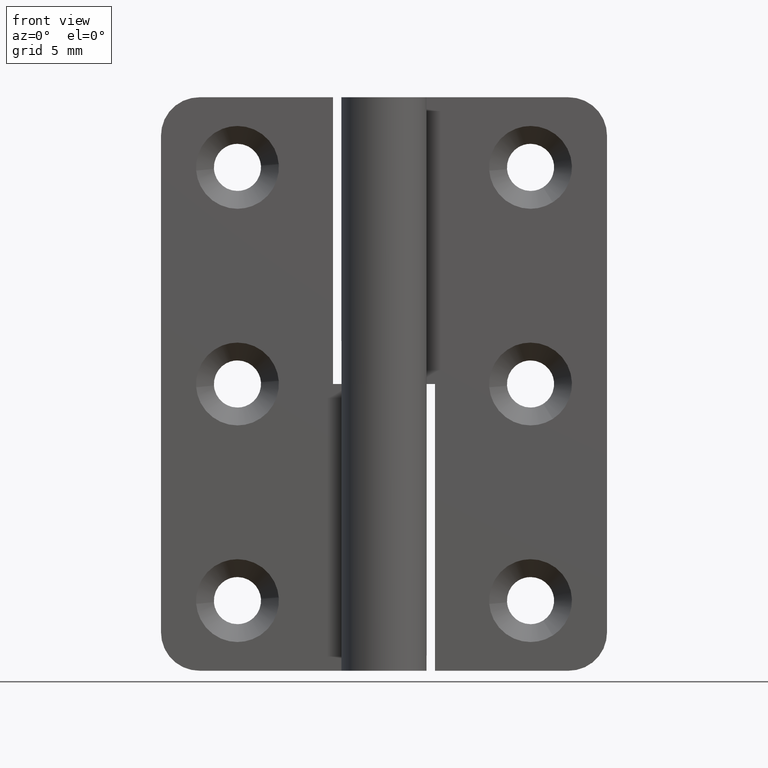
[diagram: clean part render]
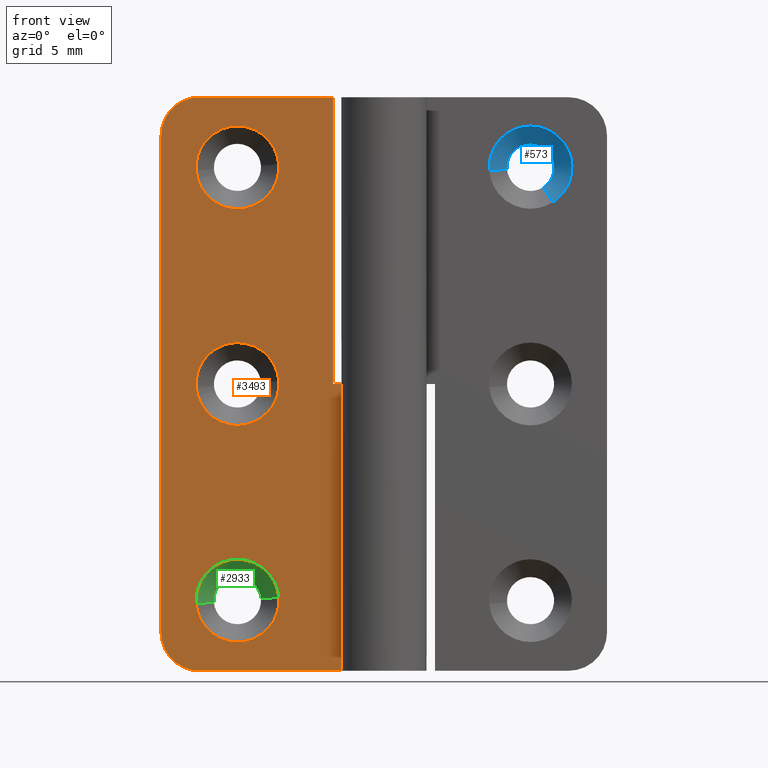
[diagram: same view with three faces highlighted in distinct colors, each labeled with its STEP entity id]
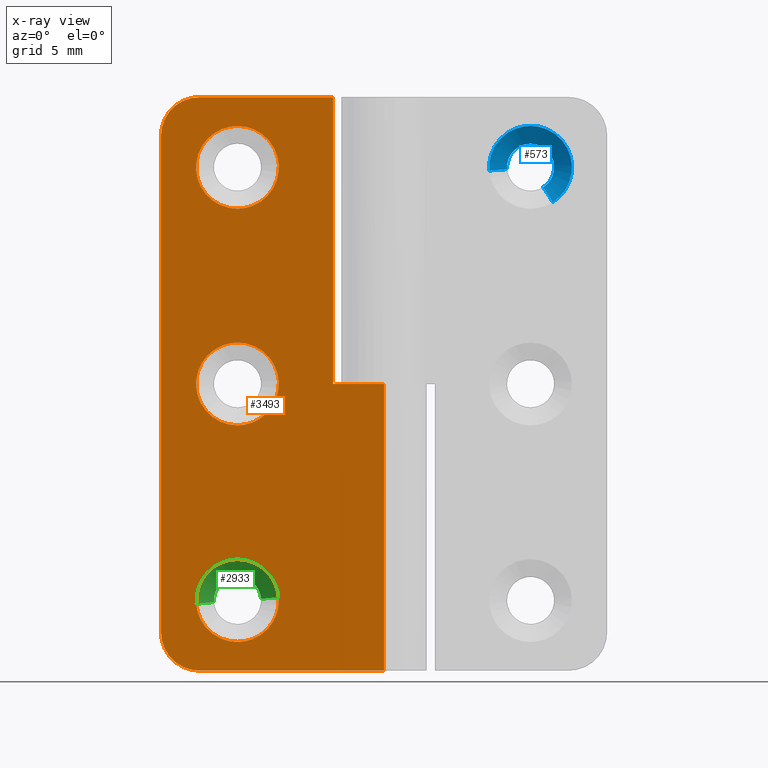
[diagram: x-ray of the same camera — body ghosted, the three highlighted faces saturated]
A machine part, front view with three faces highlighted in distinct colors.
The next image is the same camera in x-ray (body ghosted, the three faces saturated) — at least one of them is partly hidden behind the body in this view.
Their STEP definitions:

[orange] entity #3493 — the highlighted face is a freeform B-spline surface patch.
#2230=CARTESIAN_POINT('',(-8.260018665351989,1.749999999961412,39.755000061412353));
#2231=VERTEX_POINT('',#2230);
#2237=CARTESIAN_POINT('',(-11.500000000000000,1.750000000000000,42.750008000000008));
#2238=VERTEX_POINT('',#2237);
#2239=CARTESIAN_POINT('',(-11.500000000000000,1.750000000000000,42.750008000000008));
#2240=CARTESIAN_POINT('',(-8.495730902657384,1.749999999999999,42.750008000000015));
#2241=CARTESIAN_POINT('',(-8.260018665351989,1.749999999961412,39.755000061412339));
#2249=(BOUNDED_CURVE()B_SPLINE_CURVE(2,(#2239,#2240,#2241),.UNSPECIFIED.,.F.,.U.)B_SPLINE_CURVE_WITH_KNOTS((3,3),(0.0,0.236331300601676),.UNSPECIFIED.)CURVE()GEOMETRIC_REPRESENTATION_ITEM()RATIONAL_B_SPLINE_CURVE((1.0,0.723120658641622,0.969723356106932))REPRESENTATION_ITEM(''));
#2250=EDGE_CURVE('',#2238,#2231,#2249,.T.);
#2252=CARTESIAN_POINT('',(-14.739981334648011,1.749999999961411,39.245015938587670));
#2253=VERTEX_POINT('',#2252);
#2254=CARTESIAN_POINT('',(-14.739981334648013,1.749999999961411,39.245015938587677));
#2255=CARTESIAN_POINT('',(-14.750000000000004,1.750000000000000,39.372315151929897));
#2256=CARTESIAN_POINT('',(-14.750000000000000,1.750000000000000,39.500008000000001));
#2257=CARTESIAN_POINT('',(-14.749999999999993,1.750000000000000,42.750008000000008));
#2258=CARTESIAN_POINT('',(-11.500000000000000,1.750000000000000,42.750008000000008));
#2266=(BOUNDED_CURVE()B_SPLINE_CURVE(2,(#2254,#2255,#2256,#2257,#2258),.UNSPECIFIED.,.F.,.U.)B_SPLINE_CURVE_WITH_KNOTS((3,2,3),(0.736331300601676,0.750000000000000,1.0),.UNSPECIFIED.)CURVE()GEOMETRIC_REPRESENTATION_ITEM()RATIONAL_B_SPLINE_CURVE((0.969723356106932,0.983986122544926,1.0,0.707106781186547,1.0))REPRESENTATION_ITEM(''));
#2267=EDGE_CURVE('',#2253,#2238,#2266,.T.);
#2304=CARTESIAN_POINT('',(-11.500000000000000,1.750000000000000,36.250008000000001));
#2305=VERTEX_POINT('',#2304);
#2306=CARTESIAN_POINT('',(-11.500000000000000,1.750000000000000,36.250008000000001));
#2307=CARTESIAN_POINT('',(-14.504269097342593,1.749999999999999,36.250007999999994));
#2308=CARTESIAN_POINT('',(-14.739981334648009,1.749999999961411,39.245015938587670));
#2316=(BOUNDED_CURVE()B_SPLINE_CURVE(2,(#2306,#2307,#2308),.UNSPECIFIED.,.F.,.U.)B_SPLINE_CURVE_WITH_KNOTS((3,3),(0.500000000000000,0.736331300601675),.UNSPECIFIED.)CURVE()GEOMETRIC_REPRESENTATION_ITEM()RATIONAL_B_SPLINE_CURVE((1.0,0.723120658641623,0.969723356106930))REPRESENTATION_ITEM(''));
#2317=EDGE_CURVE('',#2305,#2253,#2316,.T.);
#2319=CARTESIAN_POINT('',(-8.260018665351989,1.749999999961412,39.755000061412346));
#2320=CARTESIAN_POINT('',(-8.250000000000000,1.750000000000000,39.627700848070106));
#2321=CARTESIAN_POINT('',(-8.250000000000000,1.750000000000000,39.500008000000001));
#2322=CARTESIAN_POINT('',(-8.250000000000000,1.750000000000000,36.250007999999994));
#2323=CARTESIAN_POINT('',(-11.500000000000000,1.750000000000000,36.250008000000001));
#2331=(BOUNDED_CURVE()B_SPLINE_CURVE(2,(#2319,#2320,#2321,#2322,#2323),.UNSPECIFIED.,.F.,.U.)B_SPLINE_CURVE_WITH_KNOTS((3,2,3),(0.236331300601676,0.250000000000000,0.500000000000000),.UNSPECIFIED.)CURVE()GEOMETRIC_REPRESENTATION_ITEM()RATIONAL_B_SPLINE_CURVE((0.969723356106932,0.983986122544926,1.0,0.707106781186547,1.0))REPRESENTATION_ITEM(''));
#2332=EDGE_CURVE('',#2231,#2305,#2331,.T.);
#2558=CARTESIAN_POINT('',(-8.260018665351989,1.749999999961412,22.754992061412342));
#2559=VERTEX_POINT('',#2558);
#2565=CARTESIAN_POINT('',(-11.500000000000000,1.750000000000000,25.750000000000000));
#2566=VERTEX_POINT('',#2565);
#2567=CARTESIAN_POINT('',(-11.500000000000000,1.750000000000000,25.750000000000000));
#2568=CARTESIAN_POINT('',(-8.495730902657389,1.749999999999999,25.750000000000004));
#2569=CARTESIAN_POINT('',(-8.260018665351989,1.749999999961412,22.754992061412342));
#2577=(BOUNDED_CURVE()B_SPLINE_CURVE(2,(#2567,#2568,#2569),.UNSPECIFIED.,.F.,.U.)B_SPLINE_CURVE_WITH_KNOTS((3,3),(0.0,0.236331300601676),.UNSPECIFIED.)CURVE()GEOMETRIC_REPRESENTATION_ITEM()RATIONAL_B_SPLINE_CURVE((1.0,0.723120658641622,0.969723356106931))REPRESENTATION_ITEM(''));
#2578=EDGE_CURVE('',#2566,#2559,#2577,.T.);
#2580=CARTESIAN_POINT('',(-14.739981334648011,1.749999999961411,22.245007938587658));
#2581=VERTEX_POINT('',#2580);
#2582=CARTESIAN_POINT('',(-14.739981334648009,1.749999999961411,22.245007938587666));
#2583=CARTESIAN_POINT('',(-14.749999999999998,1.750000000000000,22.372307151929903));
#2584=CARTESIAN_POINT('',(-14.750000000000000,1.750000000000000,22.500000000000000));
#2585=CARTESIAN_POINT('',(-14.749999999999993,1.750000000000000,25.750000000000004));
#2586=CARTESIAN_POINT('',(-11.500000000000000,1.750000000000000,25.750000000000000));
#2594=(BOUNDED_CURVE()B_SPLINE_CURVE(2,(#2582,#2583,#2584,#2585,#2586),.UNSPECIFIED.,.F.,.U.)B_SPLINE_CURVE_WITH_KNOTS((3,2,3),(0.736331300601676,0.750000000000000,1.0),.UNSPECIFIED.)CURVE()GEOMETRIC_REPRESENTATION_ITEM()RATIONAL_B_SPLINE_CURVE((0.969723356106931,0.983986122544926,1.0,0.707106781186547,1.0))REPRESENTATION_ITEM(''));
#2595=EDGE_CURVE('',#2581,#2566,#2594,.T.);
#2632=CARTESIAN_POINT('',(-11.500000000000000,1.750000000000000,19.250000000000000));
#2633=VERTEX_POINT('',#2632);
#2634=CARTESIAN_POINT('',(-11.500000000000000,1.750000000000000,19.250000000000000));
#2635=CARTESIAN_POINT('',(-14.504269097342593,1.749999999999999,19.250000000000004));
#2636=CARTESIAN_POINT('',(-14.739981334648009,1.749999999961411,22.245007938587658));
#2644=(BOUNDED_CURVE()B_SPLINE_CURVE(2,(#2634,#2635,#2636),.UNSPECIFIED.,.F.,.U.)B_SPLINE_CURVE_WITH_KNOTS((3,3),(0.500000000000000,0.736331300601675),.UNSPECIFIED.)CURVE()GEOMETRIC_REPRESENTATION_ITEM()RATIONAL_B_SPLINE_CURVE((1.0,0.723120658641623,0.969723356106930))REPRESENTATION_ITEM(''));
#2645=EDGE_CURVE('',#2633,#2581,#2644,.T.);
#2647=CARTESIAN_POINT('',(-8.260018665351989,1.749999999961412,22.754992061412342));
#2648=CARTESIAN_POINT('',(-8.250000000000000,1.750000000000000,22.627692848070097));
#2649=CARTESIAN_POINT('',(-8.250000000000000,1.750000000000000,22.500000000000000));
#2650=CARTESIAN_POINT('',(-8.250000000000000,1.750000000000000,19.250000000000000));
#2651=CARTESIAN_POINT('',(-11.500000000000000,1.750000000000000,19.250000000000000));
#2659=(BOUNDED_CURVE()B_SPLINE_CURVE(2,(#2647,#2648,#2649,#2650,#2651),.UNSPECIFIED.,.F.,.U.)B_SPLINE_CURVE_WITH_KNOTS((3,2,3),(0.236331300601676,0.250000000000000,0.500000000000000),.UNSPECIFIED.)CURVE()GEOMETRIC_REPRESENTATION_ITEM()RATIONAL_B_SPLINE_CURVE((0.969723356106931,0.983986122544926,1.0,0.707106781186547,1.0))REPRESENTATION_ITEM(''));
#2660=EDGE_CURVE('',#2559,#2633,#2659,.T.);
#2886=CARTESIAN_POINT('',(-8.260018665351989,1.749999999961412,5.754992061412338));
#2887=VERTEX_POINT('',#2886);
#2893=CARTESIAN_POINT('',(-11.500000000000000,1.750000000000000,8.749999999999998));
#2894=VERTEX_POINT('',#2893);
#2895=CARTESIAN_POINT('',(-11.500000000000000,1.750000000000000,8.749999999999998));
#2896=CARTESIAN_POINT('',(-8.495730902657389,1.749999999999999,8.749999999999996));
#2897=CARTESIAN_POINT('',(-8.260018665351989,1.749999999961412,5.754992061412338));
#2905=(BOUNDED_CURVE()B_SPLINE_CURVE(2,(#2895,#2896,#2897),.UNSPECIFIED.,.F.,.U.)B_SPLINE_CURVE_WITH_KNOTS((3,3),(0.0,0.236331300601676),.UNSPECIFIED.)CURVE()GEOMETRIC_REPRESENTATION_ITEM()RATIONAL_B_SPLINE_CURVE((1.0,0.723120658641622,0.969723356106931))REPRESENTATION_ITEM(''));
#2906=EDGE_CURVE('',#2894,#2887,#2905,.T.);
#2908=CARTESIAN_POINT('',(-14.739981334648011,1.749999999961411,5.245007938587662));
#2909=VERTEX_POINT('',#2908);
#2910=CARTESIAN_POINT('',(-14.739981334648009,1.749999999961411,5.245007938587662));
#2911=CARTESIAN_POINT('',(-14.749999999999998,1.750000000000000,5.372307151929897));
#2912=CARTESIAN_POINT('',(-14.750000000000000,1.750000000000000,5.500000000000000));
#2913=CARTESIAN_POINT('',(-14.749999999999993,1.750000000000000,8.749999999999998));
#2914=CARTESIAN_POINT('',(-11.500000000000000,1.750000000000000,8.749999999999998));
#2922=(BOUNDED_CURVE()B_SPLINE_CURVE(2,(#2910,#2911,#2912,#2913,#2914),.UNSPECIFIED.,.F.,.U.)B_SPLINE_CURVE_WITH_KNOTS((3,2,3),(0.736331300601676,0.750000000000000,1.0),.UNSPECIFIED.)CURVE()GEOMETRIC_REPRESENTATION_ITEM()RATIONAL_B_SPLINE_CURVE((0.969723356106931,0.983986122544926,1.0,0.707106781186547,1.0))REPRESENTATION_ITEM(''));
#2923=EDGE_CURVE('',#2909,#2894,#2922,.T.);
#2960=CARTESIAN_POINT('',(-11.500000000000000,1.750000000000000,2.250000000000000));
#2961=VERTEX_POINT('',#2960);
#2962=CARTESIAN_POINT('',(-11.500000000000000,1.750000000000000,2.250000000000000));
#2963=CARTESIAN_POINT('',(-14.504269097342593,1.749999999999999,2.250000000000000));
#2964=CARTESIAN_POINT('',(-14.739981334648009,1.749999999961411,5.245007938587662));
#2972=(BOUNDED_CURVE()B_SPLINE_CURVE(2,(#2962,#2963,#2964),.UNSPECIFIED.,.F.,.U.)B_SPLINE_CURVE_WITH_KNOTS((3,3),(0.500000000000000,0.736331300601675),.UNSPECIFIED.)CURVE()GEOMETRIC_REPRESENTATION_ITEM()RATIONAL_B_SPLINE_CURVE((1.0,0.723120658641623,0.969723356106930))REPRESENTATION_ITEM(''));
#2973=EDGE_CURVE('',#2961,#2909,#2972,.T.);
#2975=CARTESIAN_POINT('',(-8.260018665351989,1.749999999961412,5.754992061412338));
#2976=CARTESIAN_POINT('',(-8.250000000000000,1.750000000000000,5.627692848070104));
#2977=CARTESIAN_POINT('',(-8.250000000000000,1.750000000000000,5.500000000000000));
#2978=CARTESIAN_POINT('',(-8.250000000000000,1.750000000000000,2.250000000000000));
#2979=CARTESIAN_POINT('',(-11.500000000000000,1.750000000000000,2.250000000000000));
#2987=(BOUNDED_CURVE()B_SPLINE_CURVE(2,(#2975,#2976,#2977,#2978,#2979),.UNSPECIFIED.,.F.,.U.)B_SPLINE_CURVE_WITH_KNOTS((3,2,3),(0.236331300601676,0.250000000000000,0.500000000000000),.UNSPECIFIED.)CURVE()GEOMETRIC_REPRESENTATION_ITEM()RATIONAL_B_SPLINE_CURVE((0.969723356106931,0.983986122544926,1.0,0.707106781186547,1.0))REPRESENTATION_ITEM(''));
#2988=EDGE_CURVE('',#2887,#2961,#2987,.T.);
#3008=CARTESIAN_POINT('',(-17.500000000000000,1.750000000000000,3.0));
#3009=VERTEX_POINT('',#3008);
#3010=CARTESIAN_POINT('',(-14.500000000000000,1.750000000000000,0.0));
#3011=VERTEX_POINT('',#3010);
#3012=CARTESIAN_POINT('',(-17.500000000000000,1.750000000000000,3.0));
#3013=CARTESIAN_POINT('',(-17.499999999999996,1.750000000000000,0.0));
#3014=CARTESIAN_POINT('',(-14.500000000000000,1.750000000000000,0.0));
#3022=(BOUNDED_CURVE()B_SPLINE_CURVE(2,(#3012,#3013,#3014),.UNSPECIFIED.,.F.,.U.)CURVE()GEOMETRIC_REPRESENTATION_ITEM()QUASI_UNIFORM_CURVE()RATIONAL_B_SPLINE_CURVE((1.0,0.707106781186548,1.0))REPRESENTATION_ITEM(''));
#3023=EDGE_CURVE('',#3009,#3011,#3022,.T.);
#3069=CARTESIAN_POINT('',(-14.500000000000000,1.750000000000000,45.000008000000001));
#3070=VERTEX_POINT('',#3069);
#3071=CARTESIAN_POINT('',(-17.500000000000000,1.750000000000000,42.000008000000037));
#3072=VERTEX_POINT('',#3071);
#3073=CARTESIAN_POINT('',(-14.500000000000000,1.750000000000000,45.000008000000051));
#3074=CARTESIAN_POINT('',(-17.499999999999996,1.750000000000000,45.000008000000058));
#3075=CARTESIAN_POINT('',(-17.500000000000000,1.750000000000000,42.000008000000037));
#3083=(BOUNDED_CURVE()B_SPLINE_CURVE(2,(#3073,#3074,#3075),.UNSPECIFIED.,.F.,.U.)CURVE()GEOMETRIC_REPRESENTATION_ITEM()QUASI_UNIFORM_CURVE()RATIONAL_B_SPLINE_CURVE((1.0,0.707106781186548,1.0))REPRESENTATION_ITEM(''));
#3084=EDGE_CURVE('',#3070,#3072,#3083,.T.);
#3121=CARTESIAN_POINT('',(-4.0,1.750000000000030,45.000008000000001));
#3122=VERTEX_POINT('',#3121);
#3123=CARTESIAN_POINT('',(-4.0,1.750000000000030,22.500000000000000));
#3124=VERTEX_POINT('',#3123);
#3125=CARTESIAN_POINT('',(-4.0,1.750000000000030,45.000008000000001));
#3126=CARTESIAN_POINT('',(-4.0,1.750000000000030,22.500000000000000));
#3127=QUASI_UNIFORM_CURVE('',1,(#3125,#3126),.UNSPECIFIED.,.F.,.U.);
#3128=EDGE_CURVE('',#3122,#3124,#3127,.T.);
#3193=CARTESIAN_POINT('',(-1.447159E-015,1.750000000000000,22.500000000000000));
#3194=VERTEX_POINT('',#3193);
#3195=CARTESIAN_POINT('',(-4.0,1.750000000000030,22.500000000000000));
#3196=CARTESIAN_POINT('',(-1.447159E-015,1.750000000000000,22.500000000000000));
#3197=QUASI_UNIFORM_CURVE('',1,(#3195,#3196),.UNSPECIFIED.,.F.,.U.);
#3198=EDGE_CURVE('',#3124,#3194,#3197,.T.);
#3234=CARTESIAN_POINT('',(-1.447159E-015,1.750000000000000,0.0));
#3235=VERTEX_POINT('',#3234);
#3236=CARTESIAN_POINT('',(-1.447159E-015,1.750000000000000,0.0));
#3237=CARTESIAN_POINT('',(-14.500000000000000,1.750000000000000,0.0));
#3238=QUASI_UNIFORM_CURVE('',1,(#3236,#3237),.UNSPECIFIED.,.F.,.U.);
#3239=EDGE_CURVE('',#3235,#3011,#3238,.T.);
#3304=CARTESIAN_POINT('',(-17.500000000000000,1.750000000000000,3.0));
#3305=CARTESIAN_POINT('',(-17.500000000000000,1.750000000000000,42.000008000000037));
#3306=QUASI_UNIFORM_CURVE('',1,(#3304,#3305),.UNSPECIFIED.,.F.,.U.);
#3307=EDGE_CURVE('',#3009,#3072,#3306,.T.);
#3330=CARTESIAN_POINT('',(-4.0,1.750000000000030,45.000008000000001));
#3331=CARTESIAN_POINT('',(-14.500000000000000,1.750000000000000,45.000008000000001));
#3332=QUASI_UNIFORM_CURVE('',1,(#3330,#3331),.UNSPECIFIED.,.F.,.U.);
#3333=EDGE_CURVE('',#3122,#3070,#3332,.T.);
#3367=CARTESIAN_POINT('',(-1.447159E-015,1.750000000000000,0.0));
#3368=CARTESIAN_POINT('',(-1.447159E-015,1.750000000000000,22.500000000000000));
#3369=QUASI_UNIFORM_CURVE('',1,(#3367,#3368),.UNSPECIFIED.,.F.,.U.);
#3370=EDGE_CURVE('',#3235,#3194,#3369,.T.);
#3460=CARTESIAN_POINT('',(-18.374124966081599,1.750000000000000,-2.247750312381252));
#3461=CARTESIAN_POINT('',(-18.374124966081599,1.750000000000000,47.247759519375542));
#3462=CARTESIAN_POINT('',(0.874125435468179,1.750000000000000,-2.247750312381252));
#3463=CARTESIAN_POINT('',(0.874125435468179,1.750000000000000,47.247759519375542));
#3464=B_SPLINE_SURFACE_WITH_KNOTS('',1,1,((#3460,#3462),(#3461,#3463)),.UNSPECIFIED.,.F.,.F.,.U.,(2,2),(2,2),(0.0,49.495509831756792),(0.0,19.248250401549779),.UNSPECIFIED.);
#3465=ORIENTED_EDGE('',*,*,#3333,.T.);
#3466=ORIENTED_EDGE('',*,*,#3084,.T.);
#3467=ORIENTED_EDGE('',*,*,#3307,.F.);
#3468=ORIENTED_EDGE('',*,*,#3023,.T.);
#3469=ORIENTED_EDGE('',*,*,#3239,.F.);
#3470=ORIENTED_EDGE('',*,*,#3370,.T.);
#3471=ORIENTED_EDGE('',*,*,#3198,.F.);
#3472=ORIENTED_EDGE('',*,*,#3128,.F.);
#3473=EDGE_LOOP('',(#3465,#3466,#3467,#3468,#3469,#3470,#3471,#3472));
#3474=FACE_OUTER_BOUND('',#3473,.T.);
#3475=ORIENTED_EDGE('',*,*,#2973,.T.);
#3476=ORIENTED_EDGE('',*,*,#2923,.T.);
#3477=ORIENTED_EDGE('',*,*,#2906,.T.);
#3478=ORIENTED_EDGE('',*,*,#2988,.T.);
#3479=EDGE_LOOP('',(#3475,#3476,#3477,#3478));
#3480=FACE_BOUND('',#3479,.T.);
#3481=ORIENTED_EDGE('',*,*,#2645,.T.);
#3482=ORIENTED_EDGE('',*,*,#2595,.T.);
#3483=ORIENTED_EDGE('',*,*,#2578,.T.);
#3484=ORIENTED_EDGE('',*,*,#2660,.T.);
#3485=EDGE_LOOP('',(#3481,#3482,#3483,#3484));
#3486=FACE_BOUND('',#3485,.T.);
#3487=ORIENTED_EDGE('',*,*,#2317,.T.);
#3488=ORIENTED_EDGE('',*,*,#2267,.T.);
#3489=ORIENTED_EDGE('',*,*,#2250,.T.);
#3490=ORIENTED_EDGE('',*,*,#2332,.T.);
#3491=EDGE_LOOP('',(#3487,#3488,#3489,#3490));
#3492=FACE_BOUND('',#3491,.T.);
#3493=ADVANCED_FACE('',(#3474,#3480,#3486,#3492),#3464,.F.);

[blue] entity #573 — the highlighted face is a freeform B-spline surface patch.
#437=CARTESIAN_POINT('',(12.476199190104854,3.185000000000000,37.969890311311111));
#438=CARTESIAN_POINT('',(13.394906137612059,3.185000000000000,38.556015800043106));
#439=CARTESIAN_POINT('',(13.309404960725630,3.185000000000001,39.642411258746037));
#440=CARTESIAN_POINT('',(13.167001701979586,3.185000000000001,41.451816219471674));
#441=CARTESIAN_POINT('',(11.357596741253960,3.185000000000001,41.309412960725631));
#442=CARTESIAN_POINT('',(9.548191780528335,3.185000000000001,41.167009701979580));
#443=CARTESIAN_POINT('',(9.690595039274374,3.185000000000001,39.357604741253958));
#444=CARTESIAN_POINT('',(13.267310475915039,1.714125000000000,36.729883779437699));
#445=CARTESIAN_POINT('',(14.930537027507453,1.714125000000000,37.791005041303940));
#446=CARTESIAN_POINT('',(14.775745743980339,1.714125000000000,39.757814781174737));
#447=CARTESIAN_POINT('',(14.517938962805610,1.714125000000000,43.033560525155075));
#448=CARTESIAN_POINT('',(11.242193218825269,1.714125000000000,42.775753743980339));
#449=CARTESIAN_POINT('',(7.966447474844927,1.714125000000000,42.517946962805610));
#450=CARTESIAN_POINT('',(8.224254256019661,1.714125000000000,39.242201218825272));
#458=(BOUNDED_SURFACE()B_SPLINE_SURFACE(2,1,((#437,#444),(#438,#445),(#439,#446),(#440,#447),(#441,#448),(#442,#449),(#443,#450)),.UNSPECIFIED.,.F.,.F.,.U.)B_SPLINE_SURFACE_WITH_KNOTS((3,2,2,3),(2,2),(0.0,3.702066850794523,9.146282807845294,14.590498764896060),(0.0,2.080131373555525),.UNSPECIFIED.)GEOMETRIC_REPRESENTATION_ITEM()RATIONAL_B_SPLINE_SURFACE(((0.872532871172386,0.872532871172386),(0.800832611206852,0.800832611206852),(1.0,1.0),(0.707106781186548,0.707106781186548),(1.0,1.0),(0.707106781186548,0.707106781186548),(1.0,1.0)))REPRESENTATION_ITEM('')SURFACE());
#459=CARTESIAN_POINT('',(13.337067623767419,3.150000000000000,39.718371334160139));
#460=VERTEX_POINT('',#459);
#461=CARTESIAN_POINT('',(12.495023967928670,3.149999999996684,37.940383909630867));
#462=VERTEX_POINT('',#461);
#463=CARTESIAN_POINT('',(13.337067623767416,3.150000000000000,39.718371334160139));
#464=CARTESIAN_POINT('',(13.350000000000001,3.150000000000000,39.609572621401654));
#465=CARTESIAN_POINT('',(13.350000000000000,3.150000000000000,39.500008000000001));
#466=CARTESIAN_POINT('',(13.349999999999998,3.149999999999999,38.485849736452110));
#467=CARTESIAN_POINT('',(12.495023967928669,3.149999999996684,37.940383909630860));
#475=(BOUNDED_CURVE()B_SPLINE_CURVE(2,(#463,#464,#465,#466,#467),.UNSPECIFIED.,.F.,.U.)B_SPLINE_CURVE_WITH_KNOTS((3,2,3),(0.229562473507339,0.250000000000000,0.407950112617503),.UNSPECIFIED.)CURVE()GEOMETRIC_REPRESENTATION_ITEM()RATIONAL_B_SPLINE_CURVE((0.956026754171606,0.976055948323917,1.0,0.814949932414049,0.863729296948718))REPRESENTATION_ITEM(''));
#476=EDGE_CURVE('',#460,#462,#475,.T.);
#477=ORIENTED_EDGE('',*,*,#476,.T.);
#478=CARTESIAN_POINT('',(13.248015078775589,1.749999999995386,36.760127841233349));
#479=VERTEX_POINT('',#478);
#480=CARTESIAN_POINT('',(12.495023967928670,3.149999999996684,37.940383909630867));
#481=CARTESIAN_POINT('',(13.248015078775589,1.749999999995386,36.760127841233349));
#482=QUASI_UNIFORM_CURVE('',1,(#480,#481),.UNSPECIFIED.,.F.,.U.);
#483=EDGE_CURVE('',#462,#479,#482,.T.);
#484=ORIENTED_EDGE('',*,*,#483,.T.);
#485=CARTESIAN_POINT('',(11.500000000000000,1.750000000000000,42.750008000000008));
#486=VERTEX_POINT('',#485);
#487=CARTESIAN_POINT('',(11.500000000000000,1.750000000000000,42.750008000000008));
#488=CARTESIAN_POINT('',(14.749999999999993,1.750000000000000,42.750008000000008));
#489=CARTESIAN_POINT('',(14.750000000000000,1.750000000000000,39.500008000000001));
#490=CARTESIAN_POINT('',(14.750000000000004,1.750000000000000,37.718378618064726));
#491=CARTESIAN_POINT('',(13.248015078775591,1.749999999995386,36.760127841233349));
#499=(BOUNDED_CURVE()B_SPLINE_CURVE(2,(#487,#488,#489,#490,#491),.UNSPECIFIED.,.F.,.U.)B_SPLINE_CURVE_WITH_KNOTS((3,2,3),(0.0,0.250000000000000,0.407950112619439),.UNSPECIFIED.)CURVE()GEOMETRIC_REPRESENTATION_ITEM()RATIONAL_B_SPLINE_CURVE((1.0,0.707106781186547,1.0,0.814949932411780,0.863729296949914))REPRESENTATION_ITEM(''));
#500=EDGE_CURVE('',#486,#479,#499,.T.);
#501=ORIENTED_EDGE('',*,*,#500,.F.);
#502=CARTESIAN_POINT('',(8.260018665351989,1.749999999961411,39.245015938587663));
#503=VERTEX_POINT('',#502);
#504=CARTESIAN_POINT('',(8.260018665351989,1.749999999961411,39.245015938587677));
#505=CARTESIAN_POINT('',(8.249999999999998,1.750000000000000,39.372315151929897));
#506=CARTESIAN_POINT('',(8.250000000000000,1.750000000000000,39.500008000000001));
#507=CARTESIAN_POINT('',(8.250000000000000,1.750000000000000,42.750008000000008));
#508=CARTESIAN_POINT('',(11.500000000000000,1.750000000000000,42.750008000000008));
#516=(BOUNDED_CURVE()B_SPLINE_CURVE(2,(#504,#505,#506,#507,#508),.UNSPECIFIED.,.F.,.U.)B_SPLINE_CURVE_WITH_KNOTS((3,2,3),(0.736331300601676,0.750000000000000,1.0),.UNSPECIFIED.)CURVE()GEOMETRIC_REPRESENTATION_ITEM()RATIONAL_B_SPLINE_CURVE((0.969723356106932,0.983986122544926,1.0,0.707106781186547,1.0))REPRESENTATION_ITEM(''));
#517=EDGE_CURVE('',#503,#486,#516,.T.);
#518=ORIENTED_EDGE('',*,*,#517,.F.);
#519=CARTESIAN_POINT('',(9.655702932590888,3.149999999992996,39.354858672850142));
#520=VERTEX_POINT('',#519);
#521=CARTESIAN_POINT('',(9.655702932590888,3.149999999992996,39.354858672850142));
#522=CARTESIAN_POINT('',(8.260018665351989,1.749999999961411,39.245015938587663));
#523=QUASI_UNIFORM_CURVE('',1,(#521,#522),.UNSPECIFIED.,.F.,.U.);
#524=EDGE_CURVE('',#520,#503,#523,.T.);
#525=ORIENTED_EDGE('',*,*,#524,.F.);
#526=CARTESIAN_POINT('',(9.653450622924266,3.150000000000000,39.387068201783343));
#527=VERTEX_POINT('',#526);
#528=CARTESIAN_POINT('',(9.655702932590888,3.149999999992996,39.354858672850149));
#529=CARTESIAN_POINT('',(9.654436233615522,3.150000000000000,39.370953609447668));
#530=CARTESIAN_POINT('',(9.653450622924266,3.150000000000000,39.387068201783336));
#538=(BOUNDED_CURVE()B_SPLINE_CURVE(2,(#528,#529,#530),.UNSPECIFIED.,.F.,.U.)B_SPLINE_CURVE_WITH_KNOTS((3,3),(0.736331300622952,0.739332962227546),.UNSPECIFIED.)CURVE()GEOMETRIC_REPRESENTATION_ITEM()RATIONAL_B_SPLINE_CURVE((0.969723356151333,0.972855475539784,0.976072041642292))REPRESENTATION_ITEM(''));
#539=EDGE_CURVE('',#520,#527,#538,.T.);
#540=ORIENTED_EDGE('',*,*,#539,.T.);
#541=CARTESIAN_POINT('',(11.500000000000000,3.150000000000000,41.350008000000003));
#542=VERTEX_POINT('',#541);
#543=CARTESIAN_POINT('',(9.653450622924266,3.150000000000000,39.387068201783336));
#544=CARTESIAN_POINT('',(9.649999999999999,3.150000000000000,39.443485387820218));
#545=CARTESIAN_POINT('',(9.649999999999999,3.150000000000000,39.500008000000001));
#546=CARTESIAN_POINT('',(9.650000000000000,3.149999999999999,41.350007999999995));
#547=CARTESIAN_POINT('',(11.500000000000000,3.150000000000000,41.350008000000003));
#555=(BOUNDED_CURVE()B_SPLINE_CURVE(2,(#543,#544,#545,#546,#547),.UNSPECIFIED.,.F.,.U.)B_SPLINE_CURVE_WITH_KNOTS((3,2,3),(0.739332962227545,0.750000000000000,1.0),.UNSPECIFIED.)CURVE()GEOMETRIC_REPRESENTATION_ITEM()RATIONAL_B_SPLINE_CURVE((0.976072041642289,0.987502787886484,1.0,0.707106781186548,1.0))REPRESENTATION_ITEM(''));
#556=EDGE_CURVE('',#527,#542,#555,.T.);
#557=ORIENTED_EDGE('',*,*,#556,.T.);
#558=CARTESIAN_POINT('',(11.500000000000000,3.150000000000000,41.350008000000003));
#559=CARTESIAN_POINT('',(13.143122872928711,3.149999999999999,41.350007999999995));
#560=CARTESIAN_POINT('',(13.337067623767421,3.150000000000000,39.718371334160139));
#568=(BOUNDED_CURVE()B_SPLINE_CURVE(2,(#558,#559,#560),.UNSPECIFIED.,.F.,.U.)B_SPLINE_CURVE_WITH_KNOTS((3,3),(0.0,0.229562473507339),.UNSPECIFIED.)CURVE()GEOMETRIC_REPRESENTATION_ITEM()RATIONAL_B_SPLINE_CURVE((1.0,0.731050832862631,0.956026754171607))REPRESENTATION_ITEM(''));
#569=EDGE_CURVE('',#542,#460,#568,.T.);
#570=ORIENTED_EDGE('',*,*,#569,.T.);
#571=EDGE_LOOP('',(#477,#484,#501,#518,#525,#540,#557,#570));
#572=FACE_OUTER_BOUND('',#571,.T.);
#573=ADVANCED_FACE('',(#572),#458,.F.);

[green] entity #2933 — the highlighted face is a freeform B-spline surface patch.
#2738=CARTESIAN_POINT('',(-13.346549391234330,3.149999999998532,5.387060433274877));
#2739=VERTEX_POINT('',#2738);
#2783=CARTESIAN_POINT('',(-9.655702932588191,3.149999999985940,5.645149327205572));
#2784=VERTEX_POINT('',#2783);
#2800=CARTESIAN_POINT('',(-11.500000000000000,3.150000000000000,7.350000000000000));
#2801=VERTEX_POINT('',#2800);
#2802=CARTESIAN_POINT('',(-11.500000000000000,3.150000000000000,7.350000000000000));
#2803=CARTESIAN_POINT('',(-9.789877590633139,3.150000000000000,7.350000000000000));
#2804=CARTESIAN_POINT('',(-9.655702932588191,3.149999999985940,5.645149327205572));
#2812=(BOUNDED_CURVE()B_SPLINE_CURVE(2,(#2802,#2803,#2804),.UNSPECIFIED.,.F.,.U.)B_SPLINE_CURVE_WITH_KNOTS((3,3),(0.0,0.236331300612698),.UNSPECIFIED.)CURVE()GEOMETRIC_REPRESENTATION_ITEM()RATIONAL_B_SPLINE_CURVE((1.0,0.723120658628709,0.969723356129934))REPRESENTATION_ITEM(''));
#2813=EDGE_CURVE('',#2801,#2784,#2812,.T.);
#2815=CARTESIAN_POINT('',(-13.346549391234330,3.149999999998533,5.387060433274877));
#2816=CARTESIAN_POINT('',(-13.350000000000007,3.150000000000000,5.443477503929223));
#2817=CARTESIAN_POINT('',(-13.350000000000000,3.150000000000000,5.500000000000000));
#2818=CARTESIAN_POINT('',(-13.350000000000000,3.149999999999999,7.350000000000000));
#2819=CARTESIAN_POINT('',(-11.500000000000000,3.150000000000000,7.350000000000000));
#2827=(BOUNDED_CURVE()B_SPLINE_CURVE(2,(#2815,#2816,#2817,#2818,#2819),.UNSPECIFIED.,.F.,.U.)B_SPLINE_CURVE_WITH_KNOTS((3,2,3),(0.739332983865980,0.750000000000000,1.0),.UNSPECIFIED.)CURVE()GEOMETRIC_REPRESENTATION_ITEM()RATIONAL_B_SPLINE_CURVE((0.976072088017580,0.987502813237488,1.0,0.707106781186548,1.0))REPRESENTATION_ITEM(''));
#2828=EDGE_CURVE('',#2739,#2801,#2827,.T.);
#2867=CARTESIAN_POINT('',(-9.690595039274372,3.185000000000001,5.642403258746040));
#2868=CARTESIAN_POINT('',(-9.832998298020412,3.185000000000001,7.451808219471668));
#2869=CARTESIAN_POINT('',(-11.642403258746040,3.185000000000001,7.309404960725628));
#2870=CARTESIAN_POINT('',(-13.451808219471667,3.185000000000001,7.167001701979588));
#2871=CARTESIAN_POINT('',(-13.309404960725630,3.185000000000001,5.357596741253961));
#2872=CARTESIAN_POINT('',(-8.224254256019659,1.714125000000000,5.757806781174734));
#2873=CARTESIAN_POINT('',(-8.482061037194393,1.714125000000000,9.033552525155075));
#2874=CARTESIAN_POINT('',(-11.757806781174731,1.714125000000000,8.775745743980341));
#2875=CARTESIAN_POINT('',(-15.033552525155075,1.714125000000000,8.517938962805607));
#2876=CARTESIAN_POINT('',(-14.775745743980339,1.714125000000000,5.242193218825266));
#2884=(BOUNDED_SURFACE()B_SPLINE_SURFACE(2,1,((#2867,#2872),(#2868,#2873),(#2869,#2874),(#2870,#2875),(#2871,#2876)),.UNSPECIFIED.,.F.,.F.,.U.)B_SPLINE_SURFACE_WITH_KNOTS((3,2,3),(2,2),(0.0,5.444215957050777,10.888431914101551),(0.0,2.080131373555528),.UNSPECIFIED.)GEOMETRIC_REPRESENTATION_ITEM()RATIONAL_B_SPLINE_SURFACE(((1.0,1.0),(0.707106781186548,0.707106781186548),(1.0,1.0),(0.707106781186548,0.707106781186548),(1.0,1.0)))REPRESENTATION_ITEM('')SURFACE());
#2885=ORIENTED_EDGE('',*,*,#2813,.T.);
#2886=CARTESIAN_POINT('',(-8.260018665351989,1.749999999961412,5.754992061412338));
#2887=VERTEX_POINT('',#2886);
#2888=CARTESIAN_POINT('',(-9.655702932588191,3.149999999985940,5.645149327205572));
#2889=CARTESIAN_POINT('',(-8.260018665351989,1.749999999961412,5.754992061412338));
#2890=QUASI_UNIFORM_CURVE('',1,(#2888,#2889),.UNSPECIFIED.,.F.,.U.);
#2891=EDGE_CURVE('',#2784,#2887,#2890,.T.);
#2892=ORIENTED_EDGE('',*,*,#2891,.T.);
#2893=CARTESIAN_POINT('',(-11.500000000000000,1.750000000000000,8.749999999999998));
#2894=VERTEX_POINT('',#2893);
#2895=CARTESIAN_POINT('',(-11.500000000000000,1.750000000000000,8.749999999999998));
#2896=CARTESIAN_POINT('',(-8.495730902657389,1.749999999999999,8.749999999999996));
#2897=CARTESIAN_POINT('',(-8.260018665351989,1.749999999961412,5.754992061412338));
#2905=(BOUNDED_CURVE()B_SPLINE_CURVE(2,(#2895,#2896,#2897),.UNSPECIFIED.,.F.,.U.)B_SPLINE_CURVE_WITH_KNOTS((3,3),(0.0,0.236331300601676),.UNSPECIFIED.)CURVE()GEOMETRIC_REPRESENTATION_ITEM()RATIONAL_B_SPLINE_CURVE((1.0,0.723120658641622,0.969723356106931))REPRESENTATION_ITEM(''));
#2906=EDGE_CURVE('',#2894,#2887,#2905,.T.);
#2907=ORIENTED_EDGE('',*,*,#2906,.F.);
#2908=CARTESIAN_POINT('',(-14.739981334648011,1.749999999961411,5.245007938587662));
#2909=VERTEX_POINT('',#2908);
#2910=CARTESIAN_POINT('',(-14.739981334648009,1.749999999961411,5.245007938587662));
#2911=CARTESIAN_POINT('',(-14.749999999999998,1.750000000000000,5.372307151929897));
#2912=CARTESIAN_POINT('',(-14.750000000000000,1.750000000000000,5.500000000000000));
#2913=CARTESIAN_POINT('',(-14.749999999999993,1.750000000000000,8.749999999999998));
#2914=CARTESIAN_POINT('',(-11.500000000000000,1.750000000000000,8.749999999999998));
#2922=(BOUNDED_CURVE()B_SPLINE_CURVE(2,(#2910,#2911,#2912,#2913,#2914),.UNSPECIFIED.,.F.,.U.)B_SPLINE_CURVE_WITH_KNOTS((3,2,3),(0.736331300601676,0.750000000000000,1.0),.UNSPECIFIED.)CURVE()GEOMETRIC_REPRESENTATION_ITEM()RATIONAL_B_SPLINE_CURVE((0.969723356106931,0.983986122544926,1.0,0.707106781186547,1.0))REPRESENTATION_ITEM(''));
#2923=EDGE_CURVE('',#2909,#2894,#2922,.T.);
#2924=ORIENTED_EDGE('',*,*,#2923,.F.);
#2925=CARTESIAN_POINT('',(-13.346549391234330,3.149999999998532,5.387060433274877));
#2926=CARTESIAN_POINT('',(-14.739981334648011,1.749999999961411,5.245007938587662));
#2927=QUASI_UNIFORM_CURVE('',1,(#2925,#2926),.UNSPECIFIED.,.F.,.U.);
#2928=EDGE_CURVE('',#2739,#2909,#2927,.T.);
#2929=ORIENTED_EDGE('',*,*,#2928,.F.);
#2930=ORIENTED_EDGE('',*,*,#2828,.T.);
#2931=EDGE_LOOP('',(#2885,#2892,#2907,#2924,#2929,#2930));
#2932=FACE_OUTER_BOUND('',#2931,.T.);
#2933=ADVANCED_FACE('',(#2932),#2884,.F.);